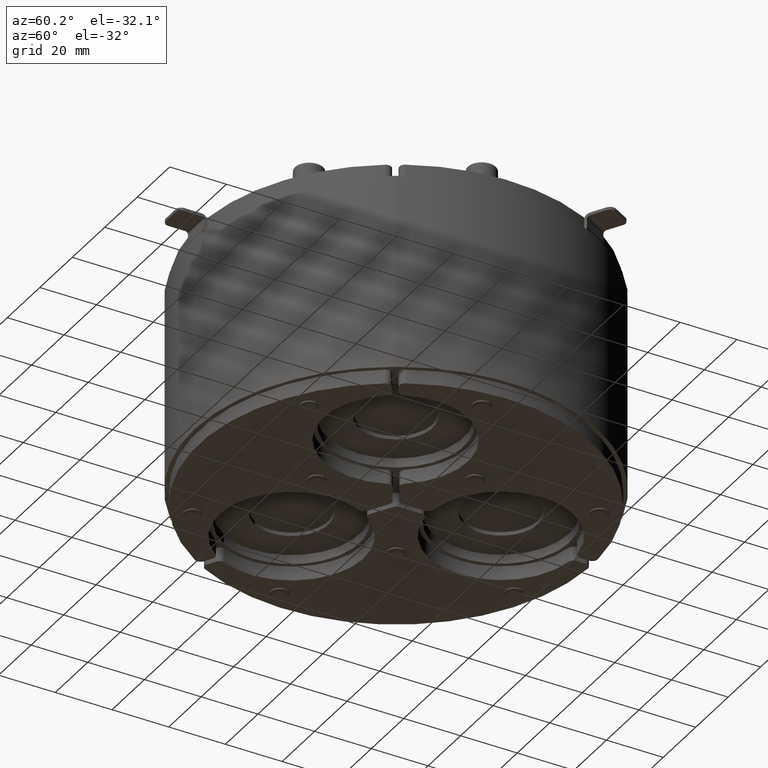
[diagram: clean part render]
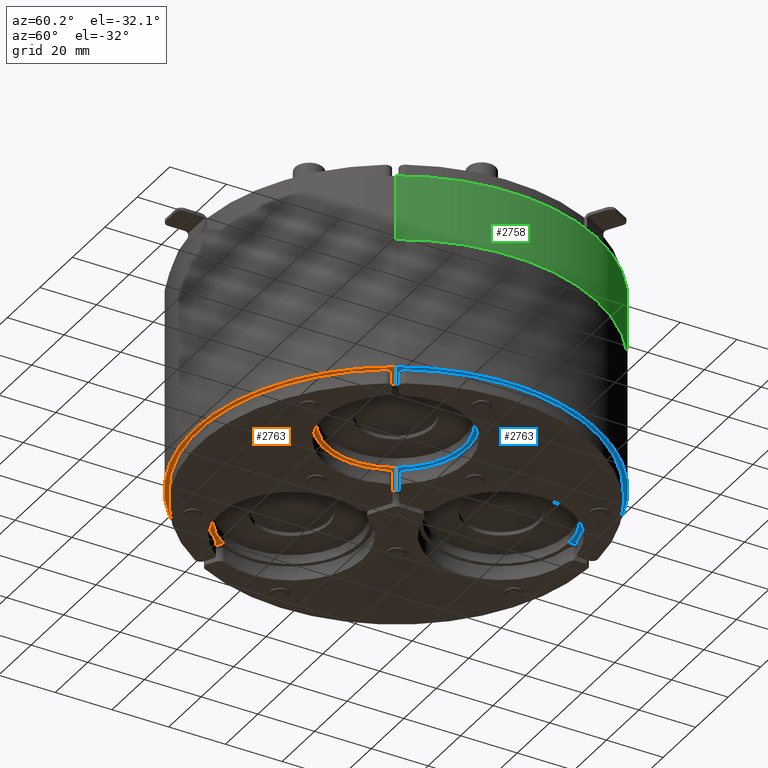
[diagram: same view with three faces highlighted in distinct colors, each labeled with its STEP entity id]
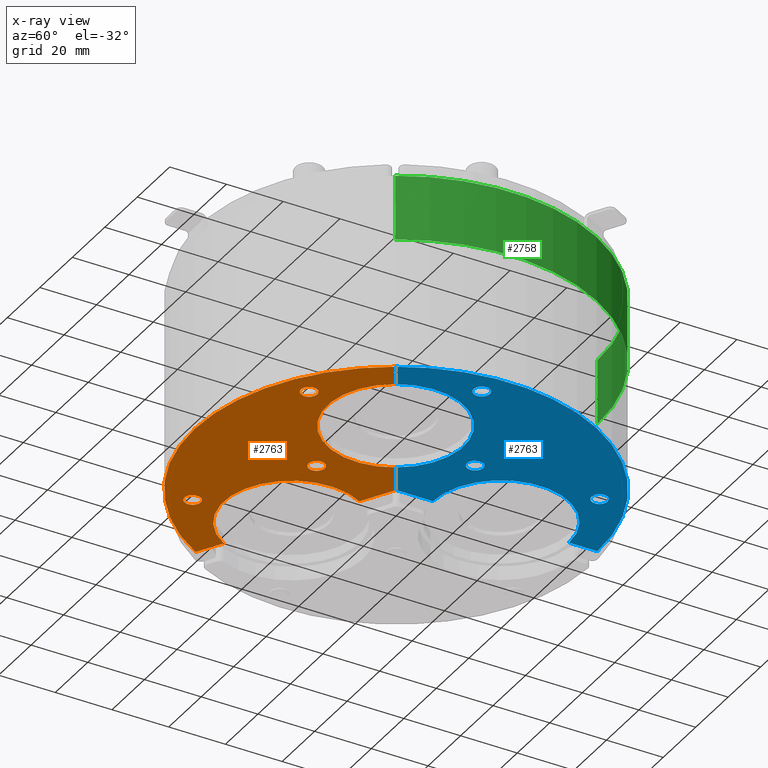
[diagram: x-ray of the same camera — body ghosted, the three highlighted faces saturated]
A machine part, auxiliary view with three faces highlighted in distinct colors.
The next image is the same camera in x-ray (body ghosted, the three faces saturated) — at least one of them is partly hidden behind the body in this view.
Their STEP definitions:

[orange] entity #2763 — the highlighted planar face has unit normal (0, 0, 1).
#246=FACE_BOUND('',#626,.T.);
#247=FACE_BOUND('',#627,.T.);
#248=FACE_BOUND('',#628,.T.);
#301=PLANE('',#3250);
#443=FACE_OUTER_BOUND('',#625,.T.);
#625=EDGE_LOOP('',(#2345,#2346,#2347,#2348,#2349,#2350,#2351));
#626=EDGE_LOOP('',(#2352));
#627=EDGE_LOOP('',(#2353));
#628=EDGE_LOOP('',(#2354));
#820=LINE('',#4787,#1042);
#824=LINE('',#4799,#1046);
#828=LINE('',#4811,#1050);
#832=LINE('',#4821,#1054);
#1042=VECTOR('',#3891,10.);
#1046=VECTOR('',#3903,10.);
#1050=VECTOR('',#3915,10.);
#1054=VECTOR('',#3927,10.);
#1217=CIRCLE('',#3229,2.85);
#1219=CIRCLE('',#3232,2.85);
#1221=CIRCLE('',#3235,2.85);
#1223=CIRCLE('',#3239,24.);
#1225=CIRCLE('',#3243,71.);
#1227=CIRCLE('',#3247,24.);
#1405=VERTEX_POINT('',#4765);
#1407=VERTEX_POINT('',#4771);
#1409=VERTEX_POINT('',#4777);
#1412=VERTEX_POINT('',#4784);
#1413=VERTEX_POINT('',#4786);
#1415=VERTEX_POINT('',#4792);
#1417=VERTEX_POINT('',#4798);
#1419=VERTEX_POINT('',#4804);
#1421=VERTEX_POINT('',#4810);
#1423=VERTEX_POINT('',#4816);
#1720=EDGE_CURVE('',#1405,#1405,#1217,.T.);
#1723=EDGE_CURVE('',#1407,#1407,#1219,.T.);
#1726=EDGE_CURVE('',#1409,#1409,#1221,.T.);
#1729=EDGE_CURVE('',#1413,#1412,#820,.T.);
#1732=EDGE_CURVE('',#1415,#1413,#1223,.T.);
#1735=EDGE_CURVE('',#1417,#1415,#824,.T.);
#1738=EDGE_CURVE('',#1419,#1417,#1225,.T.);
#1741=EDGE_CURVE('',#1421,#1419,#828,.T.);
#1744=EDGE_CURVE('',#1423,#1421,#1227,.T.);
#1747=EDGE_CURVE('',#1412,#1423,#832,.T.);
#2345=ORIENTED_EDGE('',*,*,#1747,.T.);
#2346=ORIENTED_EDGE('',*,*,#1744,.T.);
#2347=ORIENTED_EDGE('',*,*,#1741,.T.);
#2348=ORIENTED_EDGE('',*,*,#1738,.T.);
#2349=ORIENTED_EDGE('',*,*,#1735,.T.);
#2350=ORIENTED_EDGE('',*,*,#1732,.T.);
#2351=ORIENTED_EDGE('',*,*,#1729,.T.);
#2352=ORIENTED_EDGE('',*,*,#1720,.T.);
#2353=ORIENTED_EDGE('',*,*,#1723,.T.);
#2354=ORIENTED_EDGE('',*,*,#1726,.T.);
#2763=ADVANCED_FACE('',(#443,#246,#247,#248),#301,.F.);
#3229=AXIS2_PLACEMENT_3D('',#4767,#3871,#3872);
#3232=AXIS2_PLACEMENT_3D('',#4773,#3878,#3879);
#3235=AXIS2_PLACEMENT_3D('',#4779,#3885,#3886);
#3239=AXIS2_PLACEMENT_3D('',#4793,#3897,#3898);
#3243=AXIS2_PLACEMENT_3D('',#4805,#3909,#3910);
#3247=AXIS2_PLACEMENT_3D('',#4817,#3921,#3922);
#3250=AXIS2_PLACEMENT_3D('',#4823,#3930,#3931);
#3871=DIRECTION('center_axis',(0.,0.,1.));
#3872=DIRECTION('ref_axis',(1.,0.,0.));
#3878=DIRECTION('center_axis',(0.,0.,1.));
#3879=DIRECTION('ref_axis',(1.,0.,0.));
#3885=DIRECTION('center_axis',(0.,0.,1.));
#3886=DIRECTION('ref_axis',(1.,0.,0.));
#3891=DIRECTION('',(0.,-1.,0.));
#3897=DIRECTION('center_axis',(0.,0.,1.));
#3898=DIRECTION('ref_axis',(-1.,0.,0.));
#3903=DIRECTION('',(1.22464679914735E-16,-1.,0.));
#3909=DIRECTION('center_axis',(0.,0.,-1.));
#3910=DIRECTION('ref_axis',(1.,0.,0.));
#3915=DIRECTION('',(-0.866025403784439,-0.499999999999999,0.));
#3921=DIRECTION('center_axis',(0.,0.,1.));
#3922=DIRECTION('ref_axis',(-1.,0.,0.));
#3927=DIRECTION('',(-0.866025403784439,-0.5,0.));
#3930=DIRECTION('center_axis',(0.,0.,1.));
#3931=DIRECTION('ref_axis',(1.,0.,0.));
#4765=CARTESIAN_POINT('',(-27.0987113059643,14.,-23.));
#4767=CARTESIAN_POINT('Origin',(-24.2487113059643,14.,-23.));
#4771=CARTESIAN_POINT('',(-29.2636413587937,56.6442366897906,-23.));
#4773=CARTESIAN_POINT('Origin',(-26.4136413587937,56.6442366897906,-23.));
#4777=CARTESIAN_POINT('',(-65.1121686307341,-5.44723392172858,-23.));
#4779=CARTESIAN_POINT('Origin',(-62.2621686307341,-5.44723392172858,-23.));
#4784=CARTESIAN_POINT('',(0.,0.,-23.));
#4786=CARTESIAN_POINT('',(0.,13.,-23.));
#4787=CARTESIAN_POINT('',(0.,0.,-23.));
#4792=CARTESIAN_POINT('',(4.44089209850063E-15,61.,-23.));
#4793=CARTESIAN_POINT('Origin',(0.,37.,-23.));
#4798=CARTESIAN_POINT('',(2.22044604925031E-15,71.,-23.));
#4799=CARTESIAN_POINT('',(4.10013084197323E-15,61.,-23.));
#4804=CARTESIAN_POINT('',(-61.4878036686952,-35.5,-23.));
#4805=CARTESIAN_POINT('Origin',(0.,0.,-23.));
#4810=CARTESIAN_POINT('',(-52.8275496308508,-30.5,-23.));
#4811=CARTESIAN_POINT('',(-61.4878036686952,-35.5,-23.));
#4816=CARTESIAN_POINT('',(-11.2583302491977,-6.49999999999999,-23.));
#4817=CARTESIAN_POINT('Origin',(-32.0429399400242,-18.5,-23.));
#4821=CARTESIAN_POINT('',(-11.2583302491977,-6.49999999999999,-23.));
#4823=CARTESIAN_POINT('Origin',(-34.8227755452271,20.1049244965301,-23.));

[blue] entity #2763 — the highlighted planar face has unit normal (0, 0, 1).
#246=FACE_BOUND('',#626,.T.);
#247=FACE_BOUND('',#627,.T.);
#248=FACE_BOUND('',#628,.T.);
#301=PLANE('',#3250);
#443=FACE_OUTER_BOUND('',#625,.T.);
#625=EDGE_LOOP('',(#2345,#2346,#2347,#2348,#2349,#2350,#2351));
#626=EDGE_LOOP('',(#2352));
#627=EDGE_LOOP('',(#2353));
#628=EDGE_LOOP('',(#2354));
#820=LINE('',#4787,#1042);
#824=LINE('',#4799,#1046);
#828=LINE('',#4811,#1050);
#832=LINE('',#4821,#1054);
#1042=VECTOR('',#3891,10.);
#1046=VECTOR('',#3903,10.);
#1050=VECTOR('',#3915,10.);
#1054=VECTOR('',#3927,10.);
#1217=CIRCLE('',#3229,2.85);
#1219=CIRCLE('',#3232,2.85);
#1221=CIRCLE('',#3235,2.85);
#1223=CIRCLE('',#3239,24.);
#1225=CIRCLE('',#3243,71.);
#1227=CIRCLE('',#3247,24.);
#1405=VERTEX_POINT('',#4765);
#1407=VERTEX_POINT('',#4771);
#1409=VERTEX_POINT('',#4777);
#1412=VERTEX_POINT('',#4784);
#1413=VERTEX_POINT('',#4786);
#1415=VERTEX_POINT('',#4792);
#1417=VERTEX_POINT('',#4798);
#1419=VERTEX_POINT('',#4804);
#1421=VERTEX_POINT('',#4810);
#1423=VERTEX_POINT('',#4816);
#1720=EDGE_CURVE('',#1405,#1405,#1217,.T.);
#1723=EDGE_CURVE('',#1407,#1407,#1219,.T.);
#1726=EDGE_CURVE('',#1409,#1409,#1221,.T.);
#1729=EDGE_CURVE('',#1413,#1412,#820,.T.);
#1732=EDGE_CURVE('',#1415,#1413,#1223,.T.);
#1735=EDGE_CURVE('',#1417,#1415,#824,.T.);
#1738=EDGE_CURVE('',#1419,#1417,#1225,.T.);
#1741=EDGE_CURVE('',#1421,#1419,#828,.T.);
#1744=EDGE_CURVE('',#1423,#1421,#1227,.T.);
#1747=EDGE_CURVE('',#1412,#1423,#832,.T.);
#2345=ORIENTED_EDGE('',*,*,#1747,.T.);
#2346=ORIENTED_EDGE('',*,*,#1744,.T.);
#2347=ORIENTED_EDGE('',*,*,#1741,.T.);
#2348=ORIENTED_EDGE('',*,*,#1738,.T.);
#2349=ORIENTED_EDGE('',*,*,#1735,.T.);
#2350=ORIENTED_EDGE('',*,*,#1732,.T.);
#2351=ORIENTED_EDGE('',*,*,#1729,.T.);
#2352=ORIENTED_EDGE('',*,*,#1720,.T.);
#2353=ORIENTED_EDGE('',*,*,#1723,.T.);
#2354=ORIENTED_EDGE('',*,*,#1726,.T.);
#2763=ADVANCED_FACE('',(#443,#246,#247,#248),#301,.F.);
#3229=AXIS2_PLACEMENT_3D('',#4767,#3871,#3872);
#3232=AXIS2_PLACEMENT_3D('',#4773,#3878,#3879);
#3235=AXIS2_PLACEMENT_3D('',#4779,#3885,#3886);
#3239=AXIS2_PLACEMENT_3D('',#4793,#3897,#3898);
#3243=AXIS2_PLACEMENT_3D('',#4805,#3909,#3910);
#3247=AXIS2_PLACEMENT_3D('',#4817,#3921,#3922);
#3250=AXIS2_PLACEMENT_3D('',#4823,#3930,#3931);
#3871=DIRECTION('center_axis',(0.,0.,1.));
#3872=DIRECTION('ref_axis',(1.,0.,0.));
#3878=DIRECTION('center_axis',(0.,0.,1.));
#3879=DIRECTION('ref_axis',(1.,0.,0.));
#3885=DIRECTION('center_axis',(0.,0.,1.));
#3886=DIRECTION('ref_axis',(1.,0.,0.));
#3891=DIRECTION('',(0.,-1.,0.));
#3897=DIRECTION('center_axis',(0.,0.,1.));
#3898=DIRECTION('ref_axis',(-1.,0.,0.));
#3903=DIRECTION('',(1.22464679914735E-16,-1.,0.));
#3909=DIRECTION('center_axis',(0.,0.,-1.));
#3910=DIRECTION('ref_axis',(1.,0.,0.));
#3915=DIRECTION('',(-0.866025403784439,-0.499999999999999,0.));
#3921=DIRECTION('center_axis',(0.,0.,1.));
#3922=DIRECTION('ref_axis',(-1.,0.,0.));
#3927=DIRECTION('',(-0.866025403784439,-0.5,0.));
#3930=DIRECTION('center_axis',(0.,0.,1.));
#3931=DIRECTION('ref_axis',(1.,0.,0.));
#4765=CARTESIAN_POINT('',(-27.0987113059643,14.,-23.));
#4767=CARTESIAN_POINT('Origin',(-24.2487113059643,14.,-23.));
#4771=CARTESIAN_POINT('',(-29.2636413587937,56.6442366897906,-23.));
#4773=CARTESIAN_POINT('Origin',(-26.4136413587937,56.6442366897906,-23.));
#4777=CARTESIAN_POINT('',(-65.1121686307341,-5.44723392172858,-23.));
#4779=CARTESIAN_POINT('Origin',(-62.2621686307341,-5.44723392172858,-23.));
#4784=CARTESIAN_POINT('',(0.,0.,-23.));
#4786=CARTESIAN_POINT('',(0.,13.,-23.));
#4787=CARTESIAN_POINT('',(0.,0.,-23.));
#4792=CARTESIAN_POINT('',(4.44089209850063E-15,61.,-23.));
#4793=CARTESIAN_POINT('Origin',(0.,37.,-23.));
#4798=CARTESIAN_POINT('',(2.22044604925031E-15,71.,-23.));
#4799=CARTESIAN_POINT('',(4.10013084197323E-15,61.,-23.));
#4804=CARTESIAN_POINT('',(-61.4878036686952,-35.5,-23.));
#4805=CARTESIAN_POINT('Origin',(0.,0.,-23.));
#4810=CARTESIAN_POINT('',(-52.8275496308508,-30.5,-23.));
#4811=CARTESIAN_POINT('',(-61.4878036686952,-35.5,-23.));
#4816=CARTESIAN_POINT('',(-11.2583302491977,-6.49999999999999,-23.));
#4817=CARTESIAN_POINT('Origin',(-32.0429399400242,-18.5,-23.));
#4821=CARTESIAN_POINT('',(-11.2583302491977,-6.49999999999999,-23.));
#4823=CARTESIAN_POINT('Origin',(-34.8227755452271,20.1049244965301,-23.));

[green] entity #2758 — the highlighted cylindrical surface (partial cylindrical patch) has radius 71 mm, axis along (0, -0, -1).
#438=FACE_OUTER_BOUND('',#617,.T.);
#617=EDGE_LOOP('',(#2319,#2320,#2321,#2322));
#825=LINE('',#4800,#1047);
#826=LINE('',#4806,#1048);
#1047=VECTOR('',#3904,10.);
#1048=VECTOR('',#3911,10.);
#1224=CIRCLE('',#3242,71.);
#1225=CIRCLE('',#3243,71.);
#1416=VERTEX_POINT('',#4796);
#1417=VERTEX_POINT('',#4798);
#1418=VERTEX_POINT('',#4802);
#1419=VERTEX_POINT('',#4804);
#1736=EDGE_CURVE('',#1416,#1417,#825,.T.);
#1737=EDGE_CURVE('',#1416,#1418,#1224,.T.);
#1738=EDGE_CURVE('',#1419,#1417,#1225,.T.);
#1739=EDGE_CURVE('',#1418,#1419,#826,.T.);
#2319=ORIENTED_EDGE('',*,*,#1737,.F.);
#2320=ORIENTED_EDGE('',*,*,#1736,.T.);
#2321=ORIENTED_EDGE('',*,*,#1738,.F.);
#2322=ORIENTED_EDGE('',*,*,#1739,.F.);
#2641=CYLINDRICAL_SURFACE('',#3241,71.);
#2758=ADVANCED_FACE('',(#438),#2641,.T.);
#3241=AXIS2_PLACEMENT_3D('',#4801,#3905,#3906);
#3242=AXIS2_PLACEMENT_3D('',#4803,#3907,#3908);
#3243=AXIS2_PLACEMENT_3D('',#4805,#3909,#3910);
#3904=DIRECTION('',(0.,0.,-1.));
#3905=DIRECTION('center_axis',(0.,0.,-1.));
#3906=DIRECTION('ref_axis',(-0.866025403784439,0.5,0.));
#3907=DIRECTION('center_axis',(0.,0.,1.));
#3908=DIRECTION('ref_axis',(1.,0.,0.));
#3909=DIRECTION('center_axis',(0.,0.,-1.));
#3910=DIRECTION('ref_axis',(1.,0.,0.));
#3911=DIRECTION('',(0.,0.,-1.));
#4796=CARTESIAN_POINT('',(2.87548404282587E-15,71.,0.));
#4798=CARTESIAN_POINT('',(2.22044604925031E-15,71.,-23.));
#4800=CARTESIAN_POINT('',(2.87548404282587E-15,71.,0.));
#4801=CARTESIAN_POINT('Origin',(0.,0.,0.));
#4802=CARTESIAN_POINT('',(-61.4878036686952,-35.5,0.));
#4803=CARTESIAN_POINT('Origin',(0.,0.,0.));
#4804=CARTESIAN_POINT('',(-61.4878036686952,-35.5,-23.));
#4805=CARTESIAN_POINT('Origin',(0.,0.,-23.));
#4806=CARTESIAN_POINT('',(-61.4878036686952,-35.5,0.));